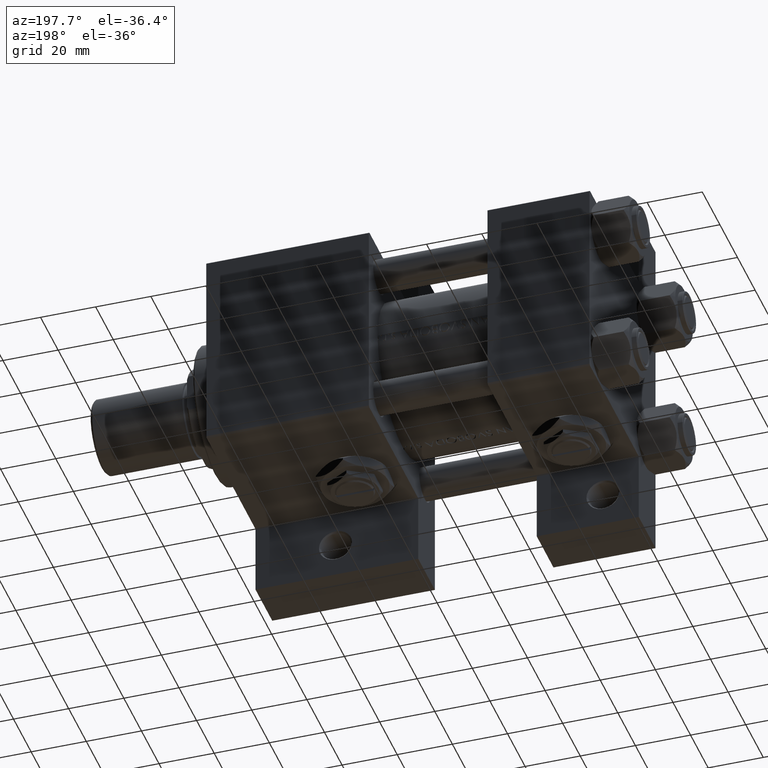
[diagram: clean part render]
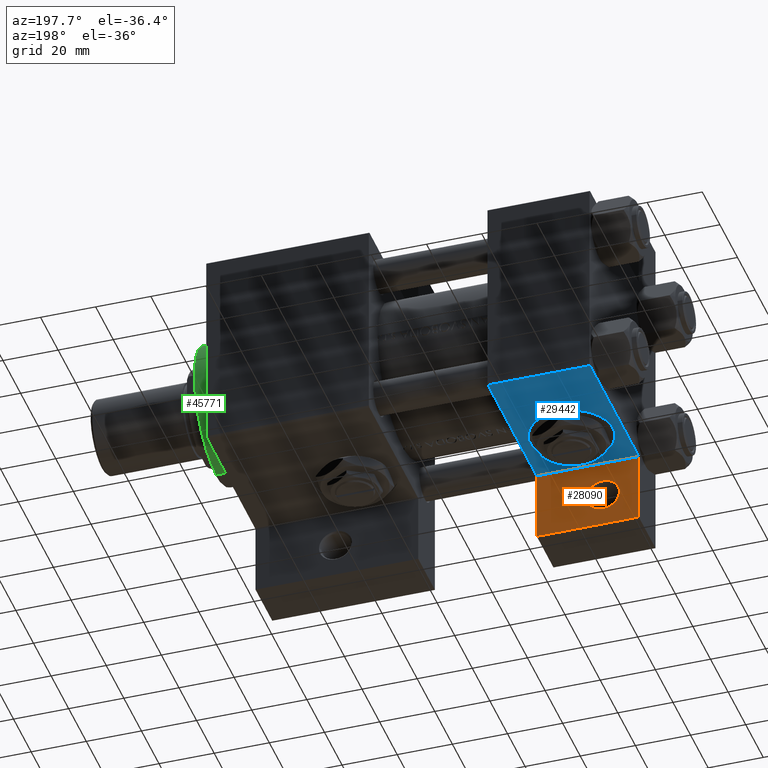
[diagram: same view with three faces highlighted in distinct colors, each labeled with its STEP entity id]
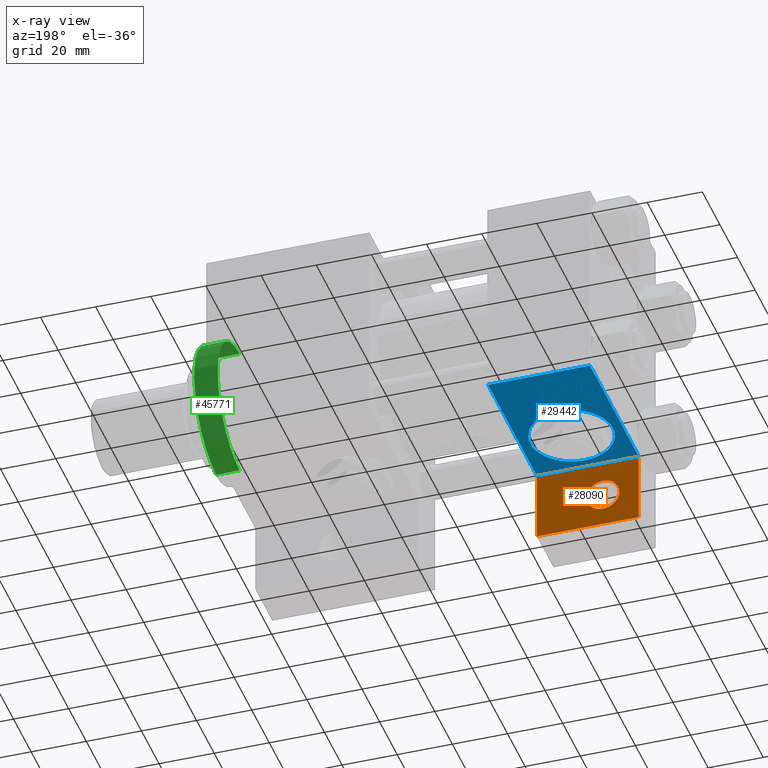
[diagram: x-ray of the same camera — body ghosted, the three highlighted faces saturated]
A machine part, auxiliary view with three faces highlighted in distinct colors.
The next image is the same camera in x-ray (body ghosted, the three faces saturated) — at least one of them is partly hidden behind the body in this view.
Their STEP definitions:

[orange] entity #28090 — the highlighted planar face has unit normal (0, -1, 0).
#382 = ORIENTED_EDGE ( 'NONE', *, *, #45884, .T. ) ;
#579 = VECTOR ( 'NONE', #31656, 1000.000000000000000 ) ;
#1076 = VERTEX_POINT ( 'NONE', #28484 ) ;
#1232 = DIRECTION ( 'NONE',  ( 1.000000000000000000, -3.750753461571474945E-16, 0.000000000000000000 ) ) ;
#1324 = DIRECTION ( 'NONE',  ( 0.000000000000000000, 0.000000000000000000, -1.000000000000000000 ) ) ;
#3279 = VERTEX_POINT ( 'NONE', #10846 ) ;
#3706 = EDGE_CURVE ( 'NONE', #44101, #12004, #9441, .T. ) ;
#4149 = CARTESIAN_POINT ( 'NONE',  ( 37.00000000000001421, 63.50000000000000000, -18.50000000000000355 ) ) ;
#4581 = DIRECTION ( 'NONE',  ( 0.000000000000000000, 0.000000000000000000, -1.000000000000000000 ) ) ;
#4942 = CIRCLE ( 'NONE', #47811, 5.999499999999966526 ) ;
#5140 = CARTESIAN_POINT ( 'NONE',  ( 1.595073532467135441E-14, 63.50000000000000000, -18.50000000000000355 ) ) ;
#5470 = DIRECTION ( 'NONE',  ( -2.877097866686192789E-16, -1.000000000000000000, 0.000000000000000000 ) ) ;
#5495 = ORIENTED_EDGE ( 'NONE', *, *, #33483, .T. ) ;
#5816 = LINE ( 'NONE', #20967, #579 ) ;
#6844 = AXIS2_PLACEMENT_3D ( 'NONE', #16241, #1324, #46056 ) ;
#7830 = EDGE_LOOP ( 'NONE', ( #28921, #5495, #35431, #15239 ) ) ;
#7905 = CARTESIAN_POINT ( 'NONE',  ( 12.99999999999999822, 50.99999999999996447, -18.50000000000000000 ) ) ;
#8147 = DIRECTION ( 'NONE',  ( -1.000000000000000000, 0.000000000000000000, 0.000000000000000000 ) ) ;
#8683 = CARTESIAN_POINT ( 'NONE',  ( 8.470280871287256020E-15, 37.50000000000002842, -18.49999999999999645 ) ) ;
#9441 = LINE ( 'NONE', #24602, #48608 ) ;
#10195 = CIRCLE ( 'NONE', #12553, 5.999499999999966526 ) ;
#10846 = CARTESIAN_POINT ( 'NONE',  ( 7.000500000000030809, 50.99999999999996447, -18.50000000000000000 ) ) ;
#12004 = VERTEX_POINT ( 'NONE', #41295 ) ;
#12265 = PLANE ( 'NONE',  #6844 ) ;
#12553 = AXIS2_PLACEMENT_3D ( 'NONE', #7905, #27015, #8147 ) ;
#15239 = ORIENTED_EDGE ( 'NONE', *, *, #32224, .T. ) ;
#15802 = ORIENTED_EDGE ( 'NONE', *, *, #32167, .T. ) ;
#16241 = CARTESIAN_POINT ( 'NONE',  ( 0.000000000000000000, 0.000000000000000000, -18.50000000000000000 ) ) ;
#17640 = VERTEX_POINT ( 'NONE', #46368 ) ;
#19165 = CARTESIAN_POINT ( 'NONE',  ( 1.595073532467135441E-14, 63.50000000000000000, -18.50000000000000355 ) ) ;
#20192 = FACE_BOUND ( 'NONE', #47430, .T. ) ;
#20294 = DIRECTION ( 'NONE',  ( -1.000000000000000000, 0.000000000000000000, 0.000000000000000000 ) ) ;
#20967 = CARTESIAN_POINT ( 'NONE',  ( 37.00000000000001421, 63.50000000000001421, -18.50000000000000355 ) ) ;
#24602 = CARTESIAN_POINT ( 'NONE',  ( 1.595073532467135757E-14, 63.50000000000001421, -18.50000000000000355 ) ) ;
#25286 = VECTOR ( 'NONE', #1232, 1000.000000000000000 ) ;
#27015 = DIRECTION ( 'NONE',  ( 0.000000000000000000, 0.000000000000000000, -1.000000000000000000 ) ) ;
#27420 = DIRECTION ( 'NONE',  ( -1.000000000000000000, 0.000000000000000000, 0.000000000000000000 ) ) ;
#28090 = ADVANCED_FACE ( 'NONE', ( #20192, #30898 ), #12265, .F. ) ;
#28484 = CARTESIAN_POINT ( 'NONE',  ( 18.99949999999996564, 50.99999999999996447, -18.50000000000000000 ) ) ;
#28541 = LINE ( 'NONE', #8683, #25286 ) ;
#28921 = ORIENTED_EDGE ( 'NONE', *, *, #3706, .T. ) ;
#30532 = EDGE_CURVE ( 'NONE', #17640, #44583, #5816, .T. ) ;
#30898 = FACE_OUTER_BOUND ( 'NONE', #7830, .T. ) ;
#31656 = DIRECTION ( 'NONE',  ( 2.668805347656626678E-16, 1.000000000000000000, 0.000000000000000000 ) ) ;
#32167 = EDGE_CURVE ( 'NONE', #3279, #1076, #10195, .T. ) ;
#32224 = EDGE_CURVE ( 'NONE', #44583, #44101, #34959, .T. ) ;
#33483 = EDGE_CURVE ( 'NONE', #12004, #17640, #28541, .T. ) ;
#34959 = LINE ( 'NONE', #5140, #35549 ) ;
#35431 = ORIENTED_EDGE ( 'NONE', *, *, #30532, .T. ) ;
#35549 = VECTOR ( 'NONE', #20294, 1000.000000000000000 ) ;
#41295 = CARTESIAN_POINT ( 'NONE',  ( 0.000000000000000000, 37.49999999999999289, -18.49999999999999645 ) ) ;
#44101 = VERTEX_POINT ( 'NONE', #19165 ) ;
#44583 = VERTEX_POINT ( 'NONE', #4149 ) ;
#45884 = EDGE_CURVE ( 'NONE', #1076, #3279, #4942, .T. ) ;
#46056 = DIRECTION ( 'NONE',  ( -1.000000000000000000, 0.000000000000000000, -0.000000000000000000 ) ) ;
#46368 = CARTESIAN_POINT ( 'NONE',  ( 37.00000000000000711, 37.50000000000000711, -18.50000000000000355 ) ) ;
#46566 = CARTESIAN_POINT ( 'NONE',  ( 12.99999999999999822, 50.99999999999996447, -18.50000000000000000 ) ) ;
#47430 = EDGE_LOOP ( 'NONE', ( #382, #15802 ) ) ;
#47811 = AXIS2_PLACEMENT_3D ( 'NONE', #46566, #4581, #27420 ) ;
#48608 = VECTOR ( 'NONE', #5470, 1000.000000000000000 ) ;

[blue] entity #29442 — the highlighted planar face has unit normal (0, 0, -1).
#1037 = DIRECTION ( 'NONE',  ( 1.000000000000000000, 0.000000000000000000, 0.000000000000000000 ) ) ;
#1232 = DIRECTION ( 'NONE',  ( 1.000000000000000000, -3.750753461571474945E-16, 0.000000000000000000 ) ) ;
#1669 = DIRECTION ( 'NONE',  ( 0.000000000000000000, 0.000000000000000000, -1.000000000000000000 ) ) ;
#2951 = AXIS2_PLACEMENT_3D ( 'NONE', #10457, #48223, #18383 ) ;
#4038 = EDGE_CURVE ( 'NONE', #26999, #17640, #47135, .T. ) ;
#5891 = CARTESIAN_POINT ( 'NONE',  ( 37.00000000000000000, 37.49999999999999289, 37.50000000000000000 ) ) ;
#6057 = CARTESIAN_POINT ( 'NONE',  ( 0.000000000000000000, 37.49999999999999289, 37.50000000000000000 ) ) ;
#8683 = CARTESIAN_POINT ( 'NONE',  ( 8.470280871287256020E-15, 37.50000000000002842, -18.49999999999999645 ) ) ;
#8809 = VERTEX_POINT ( 'NONE', #31877 ) ;
#9550 = ORIENTED_EDGE ( 'NONE', *, *, #29759, .F. ) ;
#9896 = DIRECTION ( 'NONE',  ( 0.000000000000000000, 0.000000000000000000, 1.000000000000000000 ) ) ;
#10457 = CARTESIAN_POINT ( 'NONE',  ( 37.00000000000000000, 37.49999999999999289, 37.50000000000000000 ) ) ;
#10690 = CARTESIAN_POINT ( 'NONE',  ( 18.50000000000000000, 37.49999999999999289, 0.000000000000000000 ) ) ;
#11927 = CARTESIAN_POINT ( 'NONE',  ( 37.00000000000000000, 37.49999999999999289, 37.00000000000000000 ) ) ;
#12004 = VERTEX_POINT ( 'NONE', #41295 ) ;
#12861 = AXIS2_PLACEMENT_3D ( 'NONE', #24561, #20828, #9896 ) ;
#16195 = CARTESIAN_POINT ( 'NONE',  ( 37.00000000000000000, 37.49999999999999289, 37.00000000000000000 ) ) ;
#16737 = VECTOR ( 'NONE', #1037, 1000.000000000000000 ) ;
#17640 = VERTEX_POINT ( 'NONE', #46368 ) ;
#18383 = DIRECTION ( 'NONE',  ( 0.000000000000000000, -0.000000000000000000, 1.000000000000000000 ) ) ;
#20201 = EDGE_CURVE ( 'NONE', #47734, #20915, #22715, .T. ) ;
#20828 = DIRECTION ( 'NONE',  ( 0.000000000000000000, 1.000000000000000000, 0.000000000000000000 ) ) ;
#20915 = VERTEX_POINT ( 'NONE', #32137 ) ;
#22179 = LINE ( 'NONE', #6057, #25946 ) ;
#22715 = CIRCLE ( 'NONE', #27465, 15.00000000000000178 ) ;
#24561 = CARTESIAN_POINT ( 'NONE',  ( 18.50000000000000000, 37.49999999999999289, 0.000000000000000000 ) ) ;
#25286 = VECTOR ( 'NONE', #1232, 1000.000000000000000 ) ;
#25529 = ORIENTED_EDGE ( 'NONE', *, *, #41598, .T. ) ;
#25625 = ORIENTED_EDGE ( 'NONE', *, *, #33483, .F. ) ;
#25827 = PLANE ( 'NONE',  #2951 ) ;
#25946 = VECTOR ( 'NONE', #48293, 1000.000000000000000 ) ;
#26999 = VERTEX_POINT ( 'NONE', #11927 ) ;
#27145 = CIRCLE ( 'NONE', #12861, 15.00000000000000178 ) ;
#27465 = AXIS2_PLACEMENT_3D ( 'NONE', #10690, #48217, #33300 ) ;
#27486 = EDGE_LOOP ( 'NONE', ( #45100, #42355 ) ) ;
#28541 = LINE ( 'NONE', #8683, #25286 ) ;
#29442 = ADVANCED_FACE ( 'NONE', ( #44498, #30056 ), #25827, .T. ) ;
#29759 = EDGE_CURVE ( 'NONE', #8809, #12004, #22179, .T. ) ;
#30056 = FACE_BOUND ( 'NONE', #27486, .T. ) ;
#31877 = CARTESIAN_POINT ( 'NONE',  ( 0.000000000000000000, 37.49999999999999289, 37.00000000000000000 ) ) ;
#32137 = CARTESIAN_POINT ( 'NONE',  ( 18.50000000000000000, 37.49999999999999289, 15.00000000000000178 ) ) ;
#33300 = DIRECTION ( 'NONE',  ( 0.000000000000000000, 0.000000000000000000, 1.000000000000000000 ) ) ;
#33483 = EDGE_CURVE ( 'NONE', #12004, #17640, #28541, .T. ) ;
#33870 = ORIENTED_EDGE ( 'NONE', *, *, #4038, .T. ) ;
#38288 = LINE ( 'NONE', #16195, #16737 ) ;
#41076 = EDGE_LOOP ( 'NONE', ( #25625, #9550, #25529, #33870 ) ) ;
#41295 = CARTESIAN_POINT ( 'NONE',  ( 0.000000000000000000, 37.49999999999999289, -18.49999999999999645 ) ) ;
#41453 = VECTOR ( 'NONE', #1669, 1000.000000000000000 ) ;
#41598 = EDGE_CURVE ( 'NONE', #8809, #26999, #38288, .T. ) ;
#42355 = ORIENTED_EDGE ( 'NONE', *, *, #20201, .F. ) ;
#44440 = EDGE_CURVE ( 'NONE', #20915, #47734, #27145, .T. ) ;
#44498 = FACE_OUTER_BOUND ( 'NONE', #41076, .T. ) ;
#45036 = CARTESIAN_POINT ( 'NONE',  ( 18.50000000000000355, 37.49999999999999289, -15.00000000000000178 ) ) ;
#45100 = ORIENTED_EDGE ( 'NONE', *, *, #44440, .F. ) ;
#46368 = CARTESIAN_POINT ( 'NONE',  ( 37.00000000000000711, 37.50000000000000711, -18.50000000000000355 ) ) ;
#47135 = LINE ( 'NONE', #5891, #41453 ) ;
#47734 = VERTEX_POINT ( 'NONE', #45036 ) ;
#48217 = DIRECTION ( 'NONE',  ( 0.000000000000000000, 1.000000000000000000, 0.000000000000000000 ) ) ;
#48223 = DIRECTION ( 'NONE',  ( -0.000000000000000000, 1.000000000000000000, 0.000000000000000000 ) ) ;
#48293 = DIRECTION ( 'NONE',  ( 0.000000000000000000, 0.000000000000000000, -1.000000000000000000 ) ) ;

[green] entity #45771 — the highlighted cylindrical surface (partial cylindrical patch) has radius 25 mm, axis along (-1, -0, 0).
#3851 = CYLINDRICAL_SURFACE ( 'NONE', #31943, 25.00000000000000000 ) ;
#4360 = VECTOR ( 'NONE', #15364, 1000.000000000000000 ) ;
#5104 = CARTESIAN_POINT ( 'NONE',  ( 25.00000000000000000, 3.061616997868383043E-15, 28.69999999999999929 ) ) ;
#6001 = CARTESIAN_POINT ( 'NONE',  ( -25.00000000000000000, 0.000000000000000000, 37.69999999999999574 ) ) ;
#7097 = DIRECTION ( 'NONE',  ( -0.000000000000000000, -0.000000000000000000, -1.000000000000000000 ) ) ;
#7748 = CARTESIAN_POINT ( 'NONE',  ( 0.000000000000000000, 0.000000000000000000, 37.20000000000001705 ) ) ;
#8674 = CARTESIAN_POINT ( 'NONE',  ( 25.00000000000000000, 3.061616997868383043E-15, 37.20000000000001705 ) ) ;
#9191 = VERTEX_POINT ( 'NONE', #30482 ) ;
#9308 = ORIENTED_EDGE ( 'NONE', *, *, #14252, .T. ) ;
#10523 = VERTEX_POINT ( 'NONE', #5104 ) ;
#11057 = EDGE_CURVE ( 'NONE', #32266, #38453, #41522, .T. ) ;
#11135 = CARTESIAN_POINT ( 'NONE',  ( 25.00000000000000000, 3.061616997868383043E-15, 37.69999999999999574 ) ) ;
#14252 = EDGE_CURVE ( 'NONE', #38453, #10523, #26263, .T. ) ;
#14463 = ORIENTED_EDGE ( 'NONE', *, *, #38250, .F. ) ;
#14513 = ORIENTED_EDGE ( 'NONE', *, *, #11057, .T. ) ;
#14588 = AXIS2_PLACEMENT_3D ( 'NONE', #7748, #41047, #30600 ) ;
#14612 = DIRECTION ( 'NONE',  ( 0.000000000000000000, 0.000000000000000000, 1.000000000000000000 ) ) ;
#15292 = DIRECTION ( 'NONE',  ( -1.000000000000000000, 0.000000000000000000, 0.000000000000000000 ) ) ;
#15364 = DIRECTION ( 'NONE',  ( -0.000000000000000000, -0.000000000000000000, -1.000000000000000000 ) ) ;
#22051 = CARTESIAN_POINT ( 'NONE',  ( 0.000000000000000000, 0.000000000000000000, 28.69999999999999929 ) ) ;
#22717 = FACE_OUTER_BOUND ( 'NONE', #45184, .T. ) ;
#24541 = CIRCLE ( 'NONE', #34820, 25.00000000000000000 ) ;
#26263 = LINE ( 'NONE', #11135, #4360 ) ;
#26322 = ORIENTED_EDGE ( 'NONE', *, *, #37690, .T. ) ;
#28501 = VECTOR ( 'NONE', #47991, 1000.000000000000000 ) ;
#28985 = CARTESIAN_POINT ( 'NONE',  ( -25.00000000000000000, 0.000000000000000000, 37.20000000000001705 ) ) ;
#29087 = LINE ( 'NONE', #6001, #28501 ) ;
#29942 = CARTESIAN_POINT ( 'NONE',  ( 0.000000000000000000, 0.000000000000000000, 37.69999999999999574 ) ) ;
#30482 = CARTESIAN_POINT ( 'NONE',  ( -25.00000000000000000, 0.000000000000000000, 28.69999999999999929 ) ) ;
#30600 = DIRECTION ( 'NONE',  ( 1.000000000000000000, 0.000000000000000000, 0.000000000000000000 ) ) ;
#31943 = AXIS2_PLACEMENT_3D ( 'NONE', #29942, #7097, #15292 ) ;
#32266 = VERTEX_POINT ( 'NONE', #28985 ) ;
#34820 = AXIS2_PLACEMENT_3D ( 'NONE', #22051, #14612, #37204 ) ;
#37204 = DIRECTION ( 'NONE',  ( 1.000000000000000000, 0.000000000000000000, 0.000000000000000000 ) ) ;
#37690 = EDGE_CURVE ( 'NONE', #10523, #9191, #24541, .T. ) ;
#38250 = EDGE_CURVE ( 'NONE', #32266, #9191, #29087, .T. ) ;
#38453 = VERTEX_POINT ( 'NONE', #8674 ) ;
#41047 = DIRECTION ( 'NONE',  ( 0.000000000000000000, 0.000000000000000000, -1.000000000000000000 ) ) ;
#41522 = CIRCLE ( 'NONE', #14588, 25.00000000000000000 ) ;
#45184 = EDGE_LOOP ( 'NONE', ( #14513, #9308, #26322, #14463 ) ) ;
#45771 = ADVANCED_FACE ( 'NONE', ( #22717 ), #3851, .T. ) ;
#47991 = DIRECTION ( 'NONE',  ( -0.000000000000000000, -0.000000000000000000, -1.000000000000000000 ) ) ;